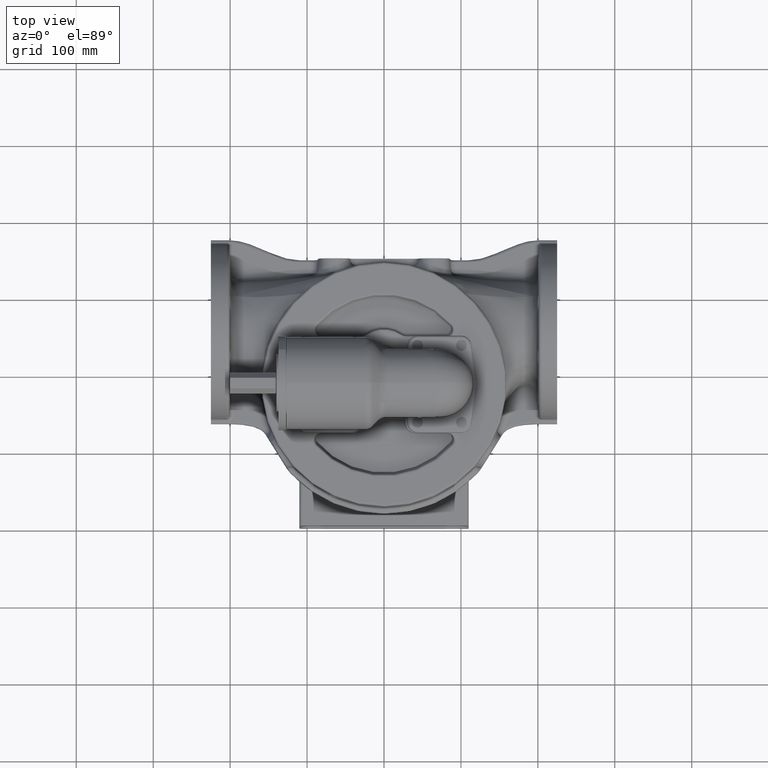
[diagram: clean part render]
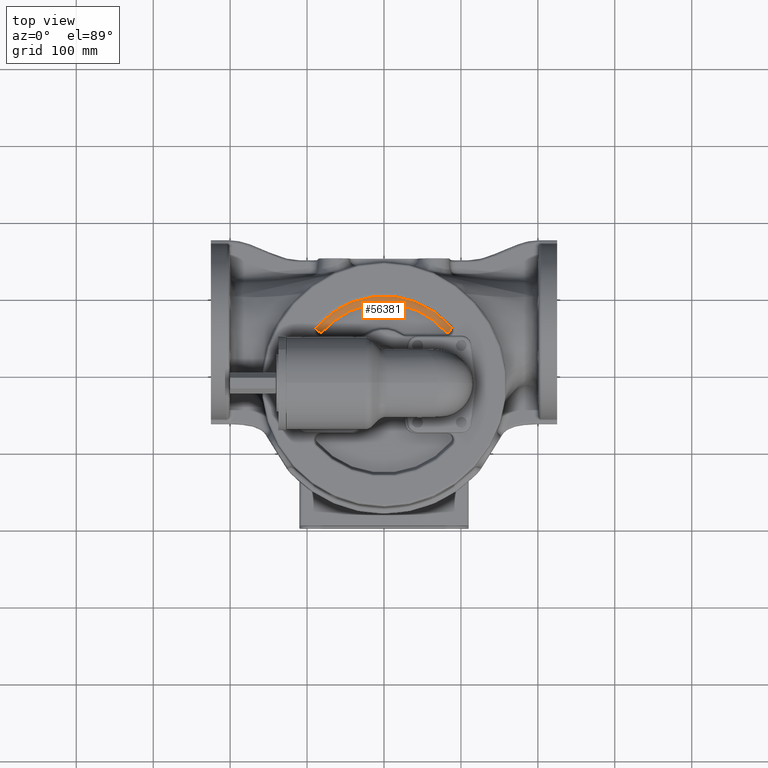
[diagram: same view with one face highlighted and labeled with its STEP entity id]
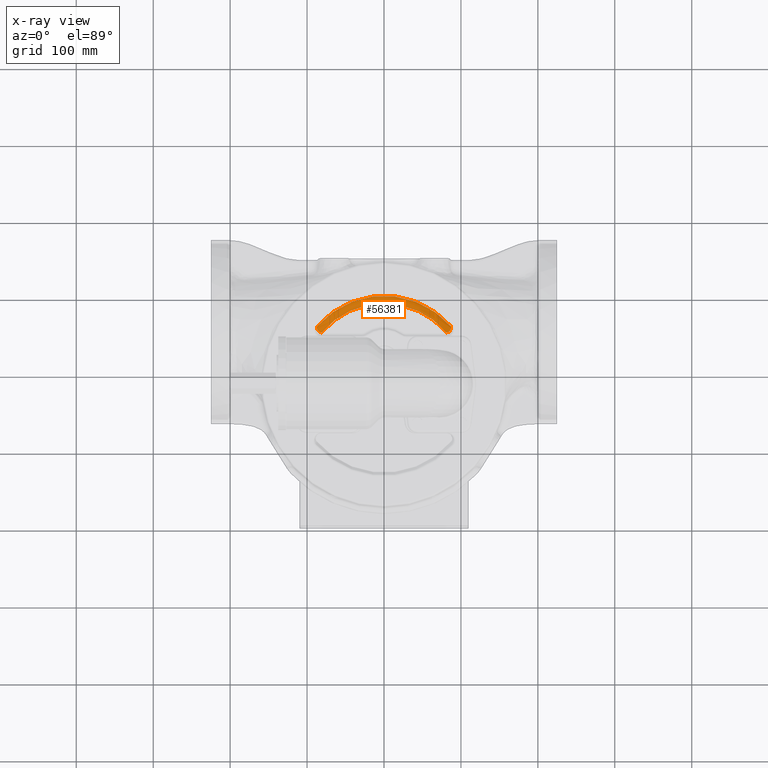
[diagram: x-ray of the same camera — body ghosted, the highlighted face saturated]
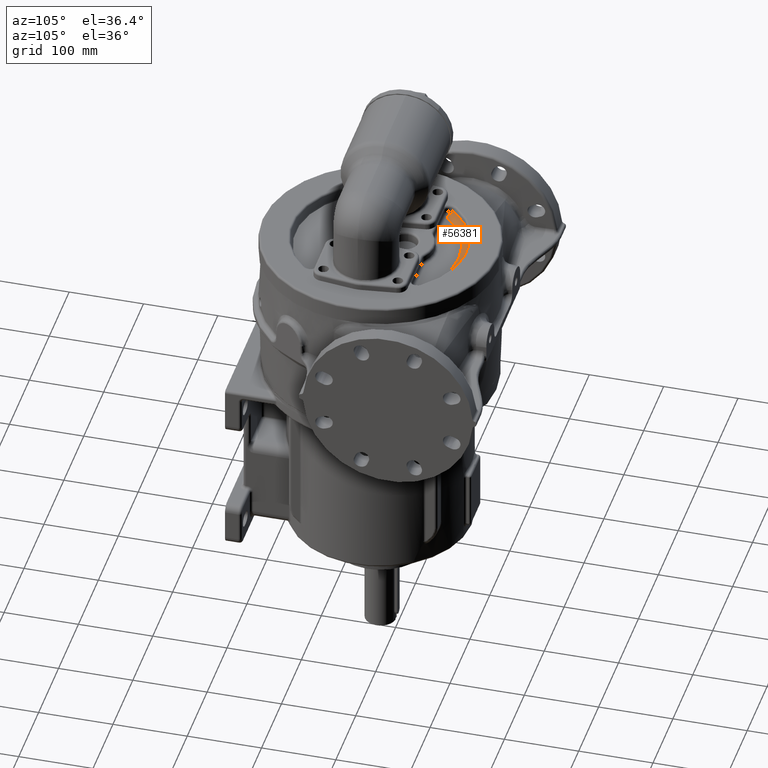
[diagram: same view with one face highlighted and labeled with its STEP entity id]
A machine part, top view. The second image highlights one B-rep face of the part: STEP entity #56381.
The next image is the same camera in x-ray: the body ghosted, the highlighted face saturated — about 0% of this face is hidden behind the body in this view.
A second angle (auxiliary view) of the same face is appended — the face is thin or edge-on in the first view.
In plain terms, the highlighted toroidal blend (fillet) surface has major radius 105.327 mm and minor (blend) radius 10 mm.
Its self-contained STEP definition (entity closure, byte-faithful):
#19283=CARTESIAN_POINT('',(-2.072491222263E-13,1.8E2,1.969118095490E2));
#19284=DIRECTION('',(0.E0,0.E0,-1.E0));
#19285=DIRECTION('',(-7.549887560711E-1,6.557377358413E-1,0.E0));
#19286=AXIS2_PLACEMENT_3D('',#19283,#19284,#19285);
#19494=CARTESIAN_POINT('',(-1.846087087757E-13,1.8E2,1.895E2));
#19495=DIRECTION('',(0.E0,0.E0,1.E0));
#19496=DIRECTION('',(7.676553047358E-1,6.408629596966E-1,0.E0));
#19497=AXIS2_PLACEMENT_3D('',#19494,#19495,#19496);
#19522=CARTESIAN_POINT('',(-8.085462310725E1,2.475E2,1.895E2));
#19523=CARTESIAN_POINT('',(-8.097602484490E1,2.475285854925E2,
1.895000000059E2));
#19524=CARTESIAN_POINT('',(-8.121867695141E1,2.475856199210E2,
1.895037301416E2));
#19525=CARTESIAN_POINT('',(-8.158195214044E1,2.476706984765E2,
1.895204870171E2));
#19526=CARTESIAN_POINT('',(-8.194396006511E1,2.477551769550E2,
1.895483529419E2));
#19527=CARTESIAN_POINT('',(-8.230422003697E1,2.478389482033E2,
1.895872502454E2));
#19528=CARTESIAN_POINT('',(-8.266226272852E1,2.479219107457E2,
1.896370825567E2));
#19529=CARTESIAN_POINT('',(-8.289912971182E1,2.479766038218E2,
1.896775064466E2));
#19530=CARTESIAN_POINT('',(-8.301706505088E1,2.480037871429E2,
1.896995017200E2));
#19532=CARTESIAN_POINT('',(-8.301706505088E1,2.480037871429E2,
1.896995017200E2));
#19533=CARTESIAN_POINT('',(-8.306724144341E1,2.480153546469E2,
1.897088600454E2));
#19534=CARTESIAN_POINT('',(-8.316895065108E1,2.480410678674E2,
1.897288002349E2));
#19535=CARTESIAN_POINT('',(-8.332571942965E1,2.480878407981E2,
1.897628687356E2));
#19536=CARTESIAN_POINT('',(-8.348552991810E1,2.481428432115E2,
1.898013137366E2));
#19537=CARTESIAN_POINT('',(-8.364787305886E1,2.482062135963E2,
1.898444745446E2));
#19538=CARTESIAN_POINT('',(-8.381213390553E1,2.482780203911E2,
1.898926658746E2));
#19539=CARTESIAN_POINT('',(-8.397771726238E1,2.483582868187E2,
1.899461942932E2));
#19540=CARTESIAN_POINT('',(-8.414402681753E1,2.484469971570E2,
1.900053532445E2));
#19541=CARTESIAN_POINT('',(-8.431048867821E1,2.485441067797E2,
1.900704270553E2));
#19542=CARTESIAN_POINT('',(-8.447654771349E1,2.486495454824E2,
1.901416895125E2));
#19543=CARTESIAN_POINT('',(-8.464167454295E1,2.487632254309E2,
1.902194066851E2));
#19544=CARTESIAN_POINT('',(-8.480536188484E1,2.488850489073E2,
1.903038381212E2));
#19545=CARTESIAN_POINT('',(-8.496712476131E1,2.490149097679E2,
1.903952381858E2));
#19546=CARTESIAN_POINT('',(-8.512649717270E1,2.491526971809E2,
1.904938573588E2));
#19547=CARTESIAN_POINT('',(-8.528302818838E1,2.492982980264E2,
1.905999432464E2));
#19548=CARTESIAN_POINT('',(-8.543627863408E1,2.494515962399E2,
1.907137409609E2));
#19549=CARTESIAN_POINT('',(-8.558581713947E1,2.496124726469E2,
1.908354932699E2));
#19550=CARTESIAN_POINT('',(-8.573121471926E1,2.497808057826E2,
1.909654402402E2));
#19551=CARTESIAN_POINT('',(-8.587204407964E1,2.499564668191E2,
1.911038184873E2));
#19552=CARTESIAN_POINT('',(-8.600787604781E1,2.501393184997E2,
1.912508602026E2));
#19553=CARTESIAN_POINT('',(-8.613827477664E1,2.503292143326E2,
1.914067911538E2));
#19554=CARTESIAN_POINT('',(-8.626279824746E1,2.505259934611E2,
1.915718289928E2));
#19555=CARTESIAN_POINT('',(-8.638099759997E1,2.507294768729E2,
1.917461809897E2));
#19556=CARTESIAN_POINT('',(-8.649241578914E1,2.509394647096E2,
1.919300412588E2));
#19557=CARTESIAN_POINT('',(-8.659658468647E1,2.511557348905E2,
1.921235868375E2));
#19558=CARTESIAN_POINT('',(-8.669303057215E1,2.513780359500E2,
1.923269754090E2));
#19559=CARTESIAN_POINT('',(-8.678127346053E1,2.516060851242E2,
1.925403411419E2));
#19560=CARTESIAN_POINT('',(-8.686082942568E1,2.518395649454E2,
1.927637909126E2));
#19561=CARTESIAN_POINT('',(-8.693121133959E1,2.520781214158E2,
1.929973993641E2));
#19562=CARTESIAN_POINT('',(-8.699193494858E1,2.523213595088E2,
1.932412056271E2));
#19563=CARTESIAN_POINT('',(-8.704252251064E1,2.525688409608E2,
1.934952088849E2));
#19564=CARTESIAN_POINT('',(-8.708250663349E1,2.528200833029E2,
1.937593640631E2));
#19565=CARTESIAN_POINT('',(-8.711143589659E1,2.530745590215E2,
1.940335786852E2));
#19566=CARTESIAN_POINT('',(-8.712887977531E1,2.533316945090E2,
1.943177079055E2));
#19567=CARTESIAN_POINT('',(-8.713443538528E1,2.535908692677E2,
1.946115507785E2));
#19568=CARTESIAN_POINT('',(-8.712773423478E1,2.538514158822E2,
1.949148457292E2));
#19569=CARTESIAN_POINT('',(-8.710844743747E1,2.541126304167E2,
1.952272775451E2));
#19570=CARTESIAN_POINT('',(-8.707629469865E1,2.543737554562E2,
1.955484522203E2));
#19571=CARTESIAN_POINT('',(-8.703104488600E1,2.546340205667E2,
1.958779382008E2));
#19572=CARTESIAN_POINT('',(-8.697253335546E1,2.548925986907E2,
1.962152148591E2));
#19573=CARTESIAN_POINT('',(-8.690064680301E1,2.551486553223E2,
1.965597008606E2));
#19574=CARTESIAN_POINT('',(-8.684380939340E1,2.553170734697E2,
1.967937229159E2));
#19575=CARTESIAN_POINT('',(-8.681312831710E1,2.554006516603E2,
1.969118095553E2));
#19577=CARTESIAN_POINT('',(8.681312809995E1,2.554006519371E2,1.969118096208E2));
#19578=CARTESIAN_POINT('',(8.684380832850E1,2.553170756917E2,1.967937253164E2));
#19579=CARTESIAN_POINT('',(8.690064548969E1,2.551486598863E2,1.965597075564E2));
#19580=CARTESIAN_POINT('',(8.697253142396E1,2.548926058407E2,1.962152241154E2));
#19581=CARTESIAN_POINT('',(8.703104322936E1,2.546340289726E2,1.958779491943E2));
#19582=CARTESIAN_POINT('',(8.707629278253E1,2.543737679703E2,1.955484678274E2));
#19583=CARTESIAN_POINT('',(8.710844613384E1,2.541126438863E2,1.952272939852E2));
#19584=CARTESIAN_POINT('',(8.712773338705E1,2.538514326961E2,1.949148656413E2));
#19585=CARTESIAN_POINT('',(8.713443533532E1,2.535908876183E2,1.946115718909E2));
#19586=CARTESIAN_POINT('',(8.712888042361E1,2.533317154189E2,1.943177310130E2));
#19587=CARTESIAN_POINT('',(8.711143774656E1,2.530745817160E2,1.940336032521E2));
#19588=CARTESIAN_POINT('',(8.708251012085E1,2.528201075442E2,1.937593901121E2));
#19589=CARTESIAN_POINT('',(8.704252752473E1,2.525688667246E2,1.934952360267E2));
#19590=CARTESIAN_POINT('',(8.699194130946E1,2.523213868229E2,1.932412335159E2));
#19591=CARTESIAN_POINT('',(8.693121853639E1,2.520781505660E2,1.929974276082E2));
#19592=CARTESIAN_POINT('',(8.686083867167E1,2.518395950193E2,1.927638197991E2));
#19593=CARTESIAN_POINT('',(8.678128528141E1,2.516061156406E2,1.925403706216E2));
#19594=CARTESIAN_POINT('',(8.669304395373E1,2.513780674718E2,1.923270049290E2));
#19595=CARTESIAN_POINT('',(8.659659886802E1,2.511557678769E2,1.921236160594E2));
#19596=CARTESIAN_POINT('',(8.649243218252E1,2.509394980315E2,1.919300704708E2));
#19597=CARTESIAN_POINT('',(8.638101702429E1,2.507295098051E2,1.917462102462E2));
#19598=CARTESIAN_POINT('',(8.626281870705E1,2.505260274544E2,1.915718577281E2));
#19599=CARTESIAN_POINT('',(8.613829674975E1,2.503292489382E2,1.914068194135E2));
#19600=CARTESIAN_POINT('',(8.600790067703E1,2.501393526866E2,1.912508881108E2));
#19601=CARTESIAN_POINT('',(8.587207103362E1,2.499565008125E2,1.911038459165E2));
#19602=CARTESIAN_POINT('',(8.573124293351E1,2.497808404020E2,1.909654669670E2));
#19603=CARTESIAN_POINT('',(8.558584756091E1,2.496125069119E2,1.908355193481E2));
#19604=CARTESIAN_POINT('',(8.543631153491E1,2.494516297836E2,1.907137663543E2));
#19605=CARTESIAN_POINT('',(8.528306274683E1,2.492983315874E2,1.905999678471E2));
#19606=CARTESIAN_POINT('',(8.512653378543E1,2.491527301131E2,1.904938811106E2));
#19607=CARTESIAN_POINT('',(8.496716339182E1,2.490149419513E2,1.903952610395E2));
#19608=CARTESIAN_POINT('',(8.480540245845E1,2.488850803269E2,1.903038600513E2));
#19609=CARTESIAN_POINT('',(8.464171701808E1,2.487632557823E2,1.902194276090E2));
#19610=CARTESIAN_POINT('',(8.447659191520E1,2.486495747048E2,1.901417093859E2));
#19611=CARTESIAN_POINT('',(8.431053444943E1,2.485441348759E2,1.900704458629E2));
#19612=CARTESIAN_POINT('',(8.414407424396E1,2.484470235419E2,1.900053709225E2));
#19613=CARTESIAN_POINT('',(8.397776611515E1,2.483583116001E2,1.899462108488E2));
#19614=CARTESIAN_POINT('',(8.381218348483E1,2.482780433614E2,1.898926811817E2));
#19615=CARTESIAN_POINT('',(8.364792470908E1,2.482062349666E2,1.898444889623E2));
#19616=CARTESIAN_POINT('',(8.348557938439E1,2.481428614271E2,1.898013262783E2));
#19617=CARTESIAN_POINT('',(8.332577631162E1,2.480878591122E2,1.897628817601E2));
#19618=CARTESIAN_POINT('',(8.316899498893E1,2.480410797077E2,1.897288092008E2));
#19619=CARTESIAN_POINT('',(8.306725913822E1,2.480153587191E2,1.897088633448E2));
#19620=CARTESIAN_POINT('',(8.301706505072E1,2.480037871428E2,1.896995017200E2));
#19622=CARTESIAN_POINT('',(8.301706505072E1,2.480037871428E2,1.896995017200E2));
#19623=CARTESIAN_POINT('',(8.289912841448E1,2.479766033636E2,1.896775061822E2));
#19624=CARTESIAN_POINT('',(8.266225898641E1,2.479219101195E2,1.896370819773E2));
#19625=CARTESIAN_POINT('',(8.230421361821E1,2.478389474529E2,1.895872494891E2));
#19626=CARTESIAN_POINT('',(8.194395220229E1,2.477551754368E2,1.895483522413E2));
#19627=CARTESIAN_POINT('',(8.158194692940E1,2.476706978671E2,1.895204867604E2));
#19628=CARTESIAN_POINT('',(8.121867505076E1,2.475856195964E2,1.895037301088E2));
#19629=CARTESIAN_POINT('',(8.097602431953E1,2.475285852526E2,1.895000000068E2));
#19630=CARTESIAN_POINT('',(8.085462310725E1,2.475E2,1.895E2));
#33693=VERTEX_POINT('',#19532);
#33694=VERTEX_POINT('',#19575);
#33703=CARTESIAN_POINT('',(8.681312790242E1,2.554006521738E2,1.969118095490E2));
#33704=VERTEX_POINT('',#33703);
#33706=VERTEX_POINT('',#19620);
#33831=CARTESIAN_POINT('',(8.085462313864E1,2.475000000262E2,1.895E2));
#33832=CARTESIAN_POINT('',(-8.085462313864E1,2.475000000262E2,1.895E2));
#33833=VERTEX_POINT('',#33831);
#33834=VERTEX_POINT('',#33832);
#56364=CARTESIAN_POINT('',(-2.151551135382E-13,1.8E2,1.995E2));
#56365=DIRECTION('',(0.E0,0.E0,1.E0));
#56366=DIRECTION('',(-2.666529602753E-3,-9.999964448036E-1,0.E0));
#56367=AXIS2_PLACEMENT_3D('',#56364,#56365,#56366);
#56368=TOROIDAL_SURFACE('',#56367,1.053267301202E2,1.E1);
#56369=ORIENTED_EDGE('',*,*,#56350,.T.);
#56371=ORIENTED_EDGE('',*,*,#56370,.T.);
#56373=ORIENTED_EDGE('',*,*,#56372,.T.);
#56374=ORIENTED_EDGE('',*,*,#56221,.T.);
#56376=ORIENTED_EDGE('',*,*,#56375,.T.);
#56378=ORIENTED_EDGE('',*,*,#56377,.T.);
#56379=EDGE_LOOP('',(#56369,#56371,#56373,#56374,#56376,#56378));
#56380=FACE_OUTER_BOUND('',#56379,.F.);
#56381=ADVANCED_FACE('',(#56380),#56368,.F.);
#19287=CIRCLE('',#19286,1.149859883831E2);
#19498=CIRCLE('',#19497,1.053267301611E2);
#19531=B_SPLINE_CURVE_WITH_KNOTS('',3,(#19522,#19523,#19524,#19525,#19526,
#19527,#19528,#19529,#19530),.UNSPECIFIED.,.F.,.F.,(4,1,1,1,1,1,4),(0.E0,
1.666666666667E-1,3.333333333333E-1,5.E-1,6.666666666667E-1,8.333333333333E-1,
1.E0),.UNSPECIFIED.);
#19576=B_SPLINE_CURVE_WITH_KNOTS('',3,(#19532,#19533,#19534,#19535,#19536,
#19537,#19538,#19539,#19540,#19541,#19542,#19543,#19544,#19545,#19546,#19547,
#19548,#19549,#19550,#19551,#19552,#19553,#19554,#19555,#19556,#19557,#19558,
#19559,#19560,#19561,#19562,#19563,#19564,#19565,#19566,#19567,#19568,#19569,
#19570,#19571,#19572,#19573,#19574,#19575),.UNSPECIFIED.,.F.,.F.,(4,1,1,1,1,1,1,
1,1,1,1,1,1,1,1,1,1,1,1,1,1,1,1,1,1,1,1,1,1,1,1,1,1,1,1,1,1,1,1,1,1,4),(0.E0,
2.439024390244E-2,4.878048780488E-2,7.317073170732E-2,9.756097560976E-2,
1.219512195122E-1,1.463414634146E-1,1.707317073171E-1,1.951219512195E-1,
2.195121951220E-1,2.439024390244E-1,2.682926829268E-1,2.926829268293E-1,
3.170731707317E-1,3.414634146341E-1,3.658536585366E-1,3.902439024390E-1,
4.146341463415E-1,4.390243902439E-1,4.634146341463E-1,4.878048780488E-1,
5.121951219512E-1,5.365853658537E-1,5.609756097561E-1,5.853658536585E-1,
6.097560975610E-1,6.341463414634E-1,6.585365853659E-1,6.829268292683E-1,
7.073170731707E-1,7.317073170732E-1,7.560975609756E-1,7.804878048780E-1,
8.048780487805E-1,8.292682926829E-1,8.536585365854E-1,8.780487804878E-1,
9.024390243902E-1,9.268292682927E-1,9.512195121951E-1,9.756097560976E-1,1.E0),
.UNSPECIFIED.);
#19621=B_SPLINE_CURVE_WITH_KNOTS('',3,(#19577,#19578,#19579,#19580,#19581,
#19582,#19583,#19584,#19585,#19586,#19587,#19588,#19589,#19590,#19591,#19592,
#19593,#19594,#19595,#19596,#19597,#19598,#19599,#19600,#19601,#19602,#19603,
#19604,#19605,#19606,#19607,#19608,#19609,#19610,#19611,#19612,#19613,#19614,
#19615,#19616,#19617,#19618,#19619,#19620),.UNSPECIFIED.,.F.,.F.,(4,1,1,1,1,1,1,
1,1,1,1,1,1,1,1,1,1,1,1,1,1,1,1,1,1,1,1,1,1,1,1,1,1,1,1,1,1,1,1,1,1,4),(0.E0,
2.439024390244E-2,4.878048780488E-2,7.317073170732E-2,9.756097560976E-2,
1.219512195122E-1,1.463414634146E-1,1.707317073171E-1,1.951219512195E-1,
2.195121951220E-1,2.439024390244E-1,2.682926829268E-1,2.926829268293E-1,
3.170731707317E-1,3.414634146341E-1,3.658536585366E-1,3.902439024390E-1,
4.146341463415E-1,4.390243902439E-1,4.634146341463E-1,4.878048780488E-1,
5.121951219512E-1,5.365853658537E-1,5.609756097561E-1,5.853658536585E-1,
6.097560975610E-1,6.341463414634E-1,6.585365853659E-1,6.829268292683E-1,
7.073170731707E-1,7.317073170732E-1,7.560975609756E-1,7.804878048780E-1,
8.048780487805E-1,8.292682926829E-1,8.536585365854E-1,8.780487804878E-1,
9.024390243902E-1,9.268292682927E-1,9.512195121951E-1,9.756097560976E-1,1.E0),
.UNSPECIFIED.);
#19631=B_SPLINE_CURVE_WITH_KNOTS('',3,(#19622,#19623,#19624,#19625,#19626,
#19627,#19628,#19629,#19630),.UNSPECIFIED.,.F.,.F.,(4,1,1,1,1,1,4),(0.E0,
1.666666666667E-1,3.333333333333E-1,5.E-1,6.666666666667E-1,8.333333333333E-1,
1.E0),.UNSPECIFIED.);
#56221=EDGE_CURVE('',#33694,#33704,#19287,.T.);
#56350=EDGE_CURVE('',#33833,#33834,#19498,.T.);
#56370=EDGE_CURVE('',#33834,#33693,#19531,.T.);
#56372=EDGE_CURVE('',#33693,#33694,#19576,.T.);
#56375=EDGE_CURVE('',#33704,#33706,#19621,.T.);
#56377=EDGE_CURVE('',#33706,#33833,#19631,.T.);